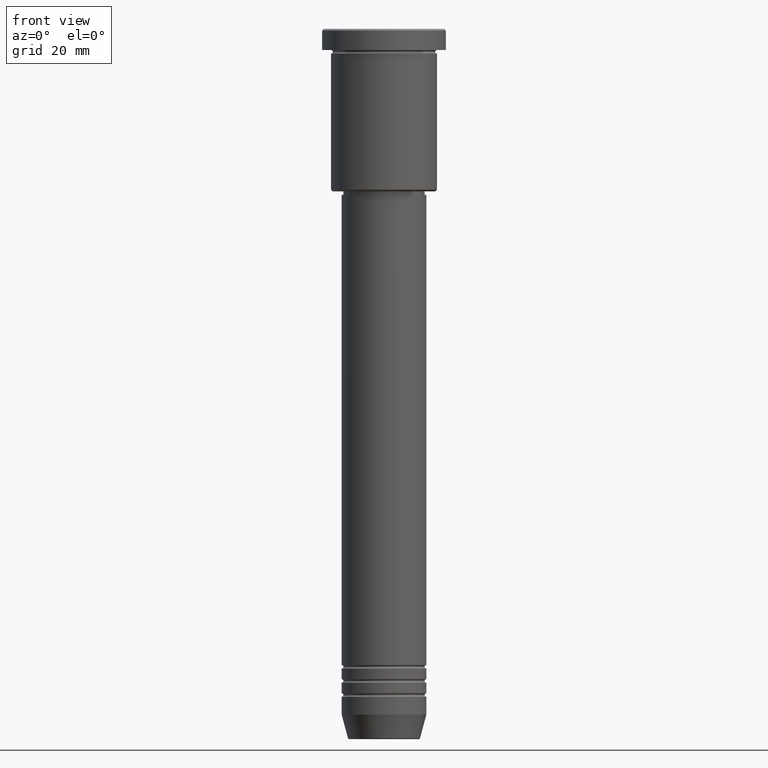
[diagram: clean part render]
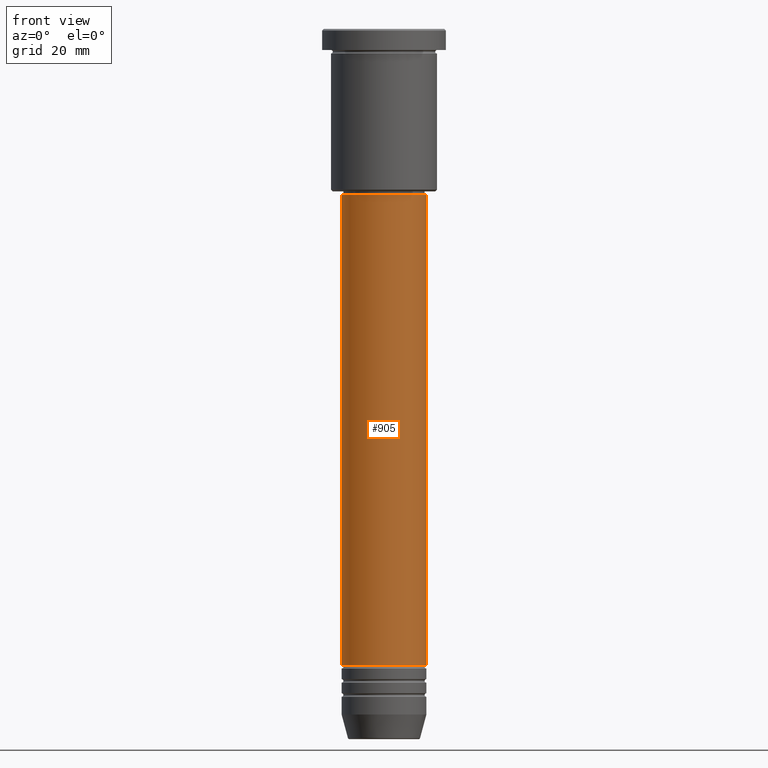
[diagram: same view with one face highlighted and labeled with its STEP entity id]
A machine part, front view. The second image highlights one B-rep face of the part: STEP entity #905.
In plain terms, the highlighted cylindrical surface (partial cylindrical patch) has radius 12 mm, axis along (-0, -0, 1).
Its self-contained STEP definition (entity closure, byte-faithful):
#4 = DIRECTION ( 'NONE',  ( 1.000000000000000000, 0.000000000000000000, 0.000000000000000000 ) ) ;
#26 = VERTEX_POINT ( 'NONE', #895 ) ;
#35 = CARTESIAN_POINT ( 'NONE',  ( 0.000000000000000000, 0.000000000000000000, -179.9999999999999147 ) ) ;
#51 = CIRCLE ( 'NONE', #216, 12.00000000000000000 ) ;
#67 = VECTOR ( 'NONE', #699, 1000.000000000000000 ) ;
#98 = FACE_OUTER_BOUND ( 'NONE', #485, .T. ) ;
#157 = EDGE_CURVE ( 'NONE', #922, #1027, #51, .T. ) ;
#162 = AXIS2_PLACEMENT_3D ( 'NONE', #920, #368, #554 ) ;
#176 = VECTOR ( 'NONE', #1059, 1000.000000000000000 ) ;
#184 = VERTEX_POINT ( 'NONE', #188 ) ;
#188 = CARTESIAN_POINT ( 'NONE',  ( 12.00000000000000000, 0.000000000000000000, -179.9999999999999147 ) ) ;
#191 = CYLINDRICAL_SURFACE ( 'NONE', #162, 12.00000000000000000 ) ;
#216 = AXIS2_PLACEMENT_3D ( 'NONE', #646, #1111, #4 ) ;
#222 = DIRECTION ( 'NONE',  ( -0.000000000000000000, -0.000000000000000000, 1.000000000000000000 ) ) ;
#306 = CARTESIAN_POINT ( 'NONE',  ( -12.00000000000000000, 1.469576158976823947E-15, 0.000000000000000000 ) ) ;
#312 = EDGE_CURVE ( 'NONE', #26, #922, #319, .T. ) ;
#319 = LINE ( 'NONE', #306, #176 ) ;
#322 = EDGE_CURVE ( 'NONE', #26, #184, #355, .T. ) ;
#355 = CIRCLE ( 'NONE', #868, 12.00000000000000000 ) ;
#363 = ORIENTED_EDGE ( 'NONE', *, *, #312, .F. ) ;
#368 = DIRECTION ( 'NONE',  ( -0.000000000000000000, -0.000000000000000000, 1.000000000000000000 ) ) ;
#450 = ORIENTED_EDGE ( 'NONE', *, *, #157, .F. ) ;
#485 = EDGE_LOOP ( 'NONE', ( #363, #783, #835, #450 ) ) ;
#554 = DIRECTION ( 'NONE',  ( 1.000000000000000000, 0.000000000000000000, 0.000000000000000000 ) ) ;
#600 = CARTESIAN_POINT ( 'NONE',  ( 12.00000000000000000, 0.000000000000000000, -47.00000000000003553 ) ) ;
#646 = CARTESIAN_POINT ( 'NONE',  ( 0.000000000000000000, 0.000000000000000000, -47.00000000000003553 ) ) ;
#692 = EDGE_CURVE ( 'NONE', #184, #1027, #1144, .T. ) ;
#699 = DIRECTION ( 'NONE',  ( -0.000000000000000000, -0.000000000000000000, 1.000000000000000000 ) ) ;
#710 = CARTESIAN_POINT ( 'NONE',  ( 12.00000000000000000, 0.000000000000000000, 0.000000000000000000 ) ) ;
#783 = ORIENTED_EDGE ( 'NONE', *, *, #322, .T. ) ;
#835 = ORIENTED_EDGE ( 'NONE', *, *, #692, .T. ) ;
#868 = AXIS2_PLACEMENT_3D ( 'NONE', #35, #222, #965 ) ;
#895 = CARTESIAN_POINT ( 'NONE',  ( -12.00000000000000000, 1.469576158976823947E-15, -179.9999999999999147 ) ) ;
#905 = ADVANCED_FACE ( 'NONE', ( #98 ), #191, .T. ) ;
#920 = CARTESIAN_POINT ( 'NONE',  ( 0.000000000000000000, 0.000000000000000000, 0.000000000000000000 ) ) ;
#922 = VERTEX_POINT ( 'NONE', #1096 ) ;
#965 = DIRECTION ( 'NONE',  ( 1.000000000000000000, 0.000000000000000000, 0.000000000000000000 ) ) ;
#1027 = VERTEX_POINT ( 'NONE', #600 ) ;
#1059 = DIRECTION ( 'NONE',  ( -0.000000000000000000, -0.000000000000000000, 1.000000000000000000 ) ) ;
#1096 = CARTESIAN_POINT ( 'NONE',  ( -12.00000000000000000, 1.469576158976823947E-15, -47.00000000000003553 ) ) ;
#1111 = DIRECTION ( 'NONE',  ( -0.000000000000000000, -0.000000000000000000, 1.000000000000000000 ) ) ;
#1144 = LINE ( 'NONE', #710, #67 ) ;